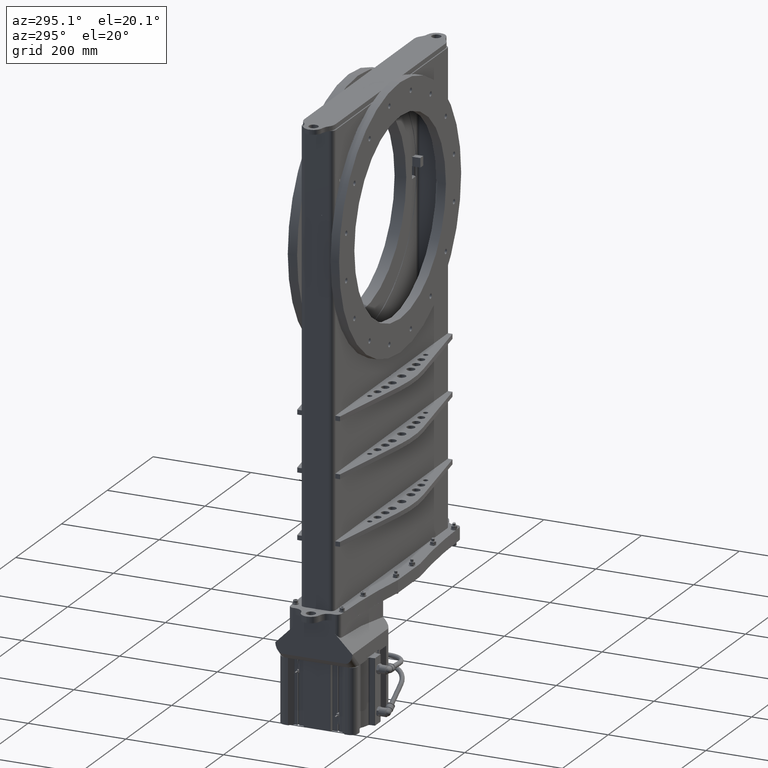
[diagram: clean part render]
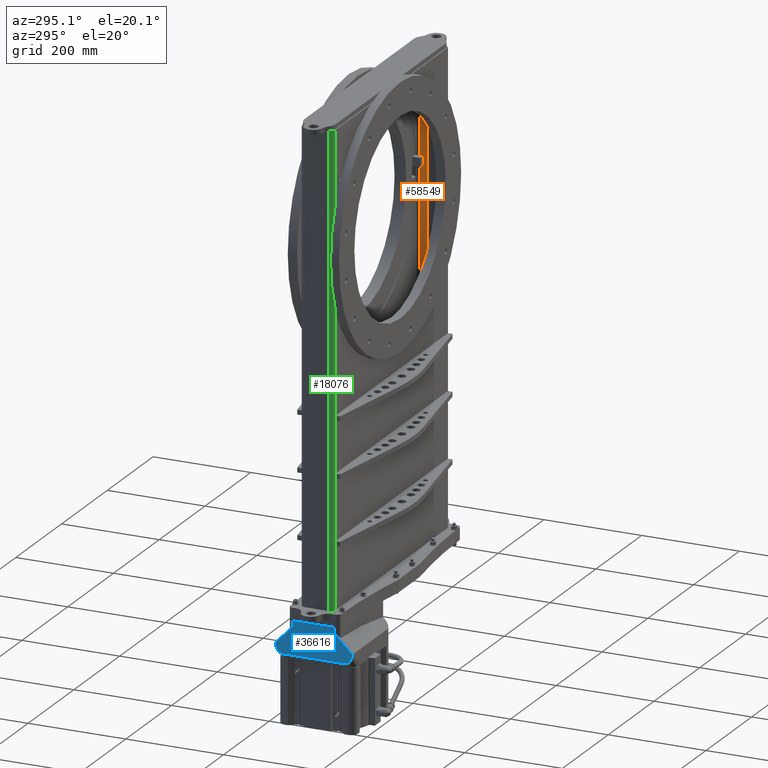
[diagram: same view with three faces highlighted in distinct colors, each labeled with its STEP entity id]
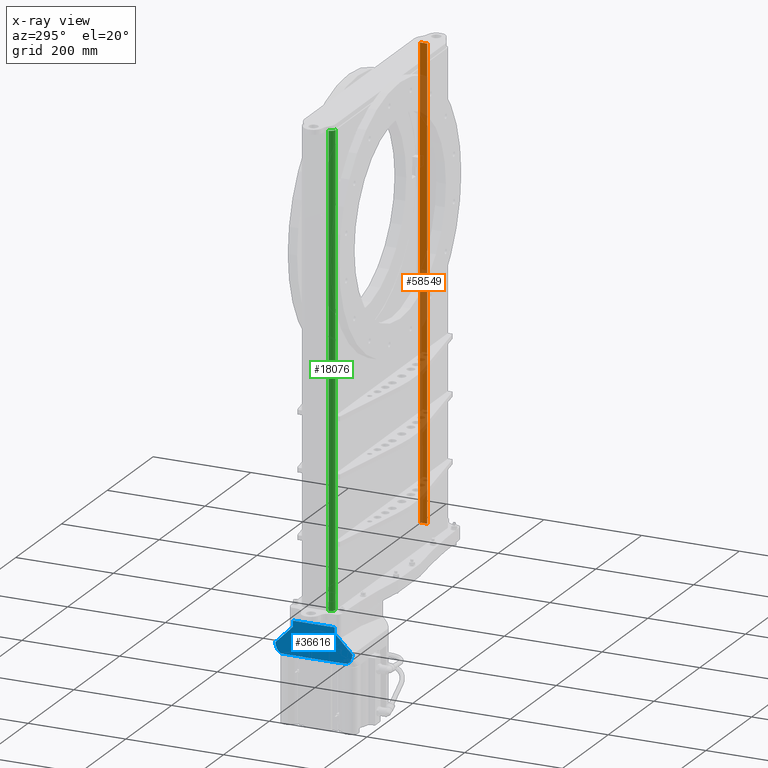
[diagram: x-ray of the same camera — body ghosted, the three highlighted faces saturated]
A machine part, auxiliary view with three faces highlighted in distinct colors.
The next image is the same camera in x-ray (body ghosted, the three faces saturated) — at least one of them is partly hidden behind the body in this view.
Their STEP definitions:

[orange] entity #58549 — the highlighted planar face has unit normal (1, 0, -0).
#2365 = LINE ( 'NONE', #22567, #28967 ) ;
#4075 = LINE ( 'NONE', #28923, #41313 ) ;
#4771 = DIRECTION ( 'NONE',  ( 1.000000000000000000, 0.0000000000000000000, -0.0000000000000000000 ) ) ;
#7005 = ORIENTED_EDGE ( 'NONE', *, *, #47632, .T. ) ;
#7576 = EDGE_LOOP ( 'NONE', ( #56840, #29252, #41639, #7005 ) ) ;
#18891 = AXIS2_PLACEMENT_3D ( 'NONE', #24563, #4771, #43050 ) ;
#20096 = EDGE_CURVE ( 'NONE', #48817, #51984, #2365, .T. ) ;
#22567 = CARTESIAN_POINT ( 'NONE',  ( 9.812500000000000000, -75.31101309069576600, 42.27682794774445800 ) ) ;
#24356 = DIRECTION ( 'NONE',  ( 0.0000000000000000000, -1.000000000000000000, 0.0000000000000000000 ) ) ;
#24563 = CARTESIAN_POINT ( 'NONE',  ( 9.812500000000000000, -74.72601309069577300, 42.27682794774445800 ) ) ;
#27495 = VECTOR ( 'NONE', #24356, 39.37007874015748100 ) ;
#28923 = CARTESIAN_POINT ( 'NONE',  ( 9.812500000000000000, -74.72601309069577300, 42.27682794774445800 ) ) ;
#28967 = VECTOR ( 'NONE', #46959, 39.37007874015748100 ) ;
#29252 = ORIENTED_EDGE ( 'NONE', *, *, #20096, .F. ) ;
#32523 = FACE_OUTER_BOUND ( 'NONE', #7576, .T. ) ;
#35208 = CARTESIAN_POINT ( 'NONE',  ( 9.812500000000000000, -75.31101309069576600, 4.964327947744453500 ) ) ;
#35418 = EDGE_CURVE ( 'NONE', #50173, #48817, #40409, .T. ) ;
#36857 = DIRECTION ( 'NONE',  ( 0.0000000000000000000, -1.000000000000000000, 0.0000000000000000000 ) ) ;
#39329 = DIRECTION ( 'NONE',  ( -0.0000000000000000000, -0.0000000000000000000, -1.000000000000000000 ) ) ;
#40409 = LINE ( 'NONE', #43878, #27495 ) ;
#41313 = VECTOR ( 'NONE', #39329, 39.37007874015748100 ) ;
#41639 = ORIENTED_EDGE ( 'NONE', *, *, #35418, .F. ) ;
#41748 = CARTESIAN_POINT ( 'NONE',  ( 9.812500000000000000, -74.72601309069577300, 4.964327947744453500 ) ) ;
#43050 = DIRECTION ( 'NONE',  ( -0.0000000000000000000, 0.0000000000000000000, -1.000000000000000000 ) ) ;
#43878 = CARTESIAN_POINT ( 'NONE',  ( 9.812500000000000000, -74.72601309069577300, 42.27682794774445800 ) ) ;
#46129 = VECTOR ( 'NONE', #36857, 39.37007874015748100 ) ;
#46959 = DIRECTION ( 'NONE',  ( -0.0000000000000000000, -0.0000000000000000000, -1.000000000000000000 ) ) ;
#47632 = EDGE_CURVE ( 'NONE', #50173, #57176, #4075, .T. ) ;
#48817 = VERTEX_POINT ( 'NONE', #50189 ) ;
#50173 = VERTEX_POINT ( 'NONE', #58271 ) ;
#50189 = CARTESIAN_POINT ( 'NONE',  ( 9.812500000000000000, -75.31101309069576600, 42.27682794774445800 ) ) ;
#51984 = VERTEX_POINT ( 'NONE', #35208 ) ;
#53014 = LINE ( 'NONE', #41748, #46129 ) ;
#54871 = CARTESIAN_POINT ( 'NONE',  ( 9.812500000000000000, -74.72601309069577300, 4.964327947744453500 ) ) ;
#56840 = ORIENTED_EDGE ( 'NONE', *, *, #60464, .T. ) ;
#57176 = VERTEX_POINT ( 'NONE', #54871 ) ;
#58271 = CARTESIAN_POINT ( 'NONE',  ( 9.812500000000000000, -74.72601309069577300, 42.27682794774445800 ) ) ;
#58549 = ADVANCED_FACE ( 'NONE', ( #32523 ), #62427, .F. ) ;
#60464 = EDGE_CURVE ( 'NONE', #57176, #51984, #53014, .T. ) ;
#62427 = PLANE ( 'NONE',  #18891 ) ;

[blue] entity #36616 — the highlighted planar face has unit normal (1, 0, -0).
#253 = DIRECTION ( 'NONE',  ( -0.0000000000000000000, -0.0000000000000000000, 1.000000000000000000 ) ) ;
#354 = EDGE_CURVE ( 'NONE', #49544, #61367, #23950, .T. ) ;
#1101 = CARTESIAN_POINT ( 'NONE',  ( -10.50000000000006600, -77.37479568848456800, 3.464327947744285200 ) ) ;
#1490 = VERTEX_POINT ( 'NONE', #17221 ) ;
#1827 = LINE ( 'NONE', #46156, #16254 ) ;
#2253 = CARTESIAN_POINT ( 'NONE',  ( -10.50000000000006600, -72.57601309069578100, 1.266327947744285500 ) ) ;
#3300 = CARTESIAN_POINT ( 'NONE',  ( -10.50000000000006600, -73.99460946825654200, 3.464327947744285200 ) ) ;
#4161 = EDGE_CURVE ( 'NONE', #61367, #46121, #26817, .T. ) ;
#6173 = ORIENTED_EDGE ( 'NONE', *, *, #354, .T. ) ;
#7648 =( BOUNDED_CURVE ( )  B_SPLINE_CURVE ( 3, ( #42055, #32234, #22531, #56511 ),
 .UNSPECIFIED., .F., .F. ) 
 B_SPLINE_CURVE_WITH_KNOTS ( ( 4, 4 ),
 ( 0.0000000000000000000, 1.512419702955841300 ),
 .UNSPECIFIED. ) 
 CURVE ( )  GEOMETRIC_REPRESENTATION_ITEM ( )  RATIONAL_B_SPLINE_CURVE ( ( 1.000000000000000000, 0.8182946085840843200, 0.8182946085840843200, 1.000000000000000000 ) ) 
 REPRESENTATION_ITEM ( '' )  );
#8020 = LINE ( 'NONE', #25354, #49798 ) ;
#8688 = VECTOR ( 'NONE', #31513, 39.37007874015748100 ) ;
#9379 = VECTOR ( 'NONE', #253, 39.37007874015748100 ) ;
#12266 = ORIENTED_EDGE ( 'NONE', *, *, #29789, .F. ) ;
#12510 = VECTOR ( 'NONE', #34873, 39.37007874015748100 ) ;
#12897 = ORIENTED_EDGE ( 'NONE', *, *, #4161, .T. ) ;
#13104 = ORIENTED_EDGE ( 'NONE', *, *, #55705, .T. ) ;
#13504 = DIRECTION ( 'NONE',  ( 1.000000000000000000, 0.0000000000000000000, -0.0000000000000000000 ) ) ;
#13579 = LINE ( 'NONE', #22535, #50049 ) ;
#13609 = EDGE_CURVE ( 'NONE', #26847, #44411, #7648, .T. ) ;
#14323 = ORIENTED_EDGE ( 'NONE', *, *, #13609, .T. ) ;
#15604 = CARTESIAN_POINT ( 'NONE',  ( -10.50000000000006600, -75.68601309069579500, 3.464327947744285200 ) ) ;
#15880 = ORIENTED_EDGE ( 'NONE', *, *, #17824, .F. ) ;
#16254 = VECTOR ( 'NONE', #55967, 39.37007874015748100 ) ;
#17221 = CARTESIAN_POINT ( 'NONE',  ( -10.50000000000006600, -73.99460946825654200, 3.964327947744285200 ) ) ;
#17714 = CARTESIAN_POINT ( 'NONE',  ( -10.50000000000006600, -72.57601309069578100, 3.964327947744285200 ) ) ;
#17720 = CARTESIAN_POINT ( 'NONE',  ( -10.50000000000006600, -73.99460946825654200, 3.464327947744285200 ) ) ;
#17824 = EDGE_CURVE ( 'NONE', #30631, #1490, #32179, .T. ) ;
#18737 = VERTEX_POINT ( 'NONE', #23567 ) ;
#18793 = ORIENTED_EDGE ( 'NONE', *, *, #48908, .F. ) ;
#20882 = CARTESIAN_POINT ( 'NONE',  ( -10.50000000000006600, -72.59660438423117100, 1.591810583778480400 ) ) ;
#21527 = ORIENTED_EDGE ( 'NONE', *, *, #56553, .T. ) ;
#21629 = LINE ( 'NONE', #2253, #8688 ) ;
#22167 = DIRECTION ( 'NONE',  ( 0.0000000000000000000, -1.000000000000000000, 0.0000000000000000000 ) ) ;
#22531 = CARTESIAN_POINT ( 'NONE',  ( -10.50000000000006600, -78.77542179716041900, 1.591810583778480800 ) ) ;
#22535 = CARTESIAN_POINT ( 'NONE',  ( -10.50000000000006600, -75.68601309069579500, 3.464327947744285200 ) ) ;
#23567 = CARTESIAN_POINT ( 'NONE',  ( -10.50000000000006600, -77.39601309069576000, 3.464327947744285200 ) ) ;
#23950 = LINE ( 'NONE', #59540, #12510 ) ;
#25161 = CARTESIAN_POINT ( 'NONE',  ( -10.50000000000006600, -72.84059879853015200, 1.266327947744285700 ) ) ;
#25354 = CARTESIAN_POINT ( 'NONE',  ( -10.50000000000006600, -77.39601309069576000, 3.464327947744285200 ) ) ;
#25558 = CARTESIAN_POINT ( 'NONE',  ( -10.50000000000006600, -72.57703514945934800, 2.065350006507838300 ) ) ;
#26817 =( BOUNDED_CURVE ( )  B_SPLINE_CURVE ( 3, ( #25558, #20882, #25161, #44447 ),
 .UNSPECIFIED., .F., .F. ) 
 B_SPLINE_CURVE_WITH_KNOTS ( ( 4, 4 ),
 ( 1.629172950633953600, 3.141592653589793100 ),
 .UNSPECIFIED. ) 
 CURVE ( )  GEOMETRIC_REPRESENTATION_ITEM ( )  RATIONAL_B_SPLINE_CURVE ( ( 1.000000000000000000, 0.8182946085840847600, 0.8182946085840847600, 1.000000000000000000 ) ) 
 REPRESENTATION_ITEM ( '' )  );
#26847 = VERTEX_POINT ( 'NONE', #28257 ) ;
#27593 = LINE ( 'NONE', #44006, #9379 ) ;
#27934 = PLANE ( 'NONE',  #29602 ) ;
#28257 = CARTESIAN_POINT ( 'NONE',  ( -10.50000000000006600, -78.19601309069578600, 1.266327947744285500 ) ) ;
#28379 = CARTESIAN_POINT ( 'NONE',  ( -10.50000000000006600, -73.97601309069581500, 3.464327947744285200 ) ) ;
#29597 = CARTESIAN_POINT ( 'NONE',  ( -10.50000000000006600, -77.37479568848456800, 3.964327947744285200 ) ) ;
#29602 = AXIS2_PLACEMENT_3D ( 'NONE', #17714, #13504, #61955 ) ;
#29714 = FACE_OUTER_BOUND ( 'NONE', #50009, .T. ) ;
#29789 = EDGE_CURVE ( 'NONE', #56678, #18737, #13579, .T. ) ;
#30631 = VERTEX_POINT ( 'NONE', #3300 ) ;
#30669 = ORIENTED_EDGE ( 'NONE', *, *, #40307, .T. ) ;
#31513 = DIRECTION ( 'NONE',  ( 0.0000000000000000000, -1.000000000000000000, 0.0000000000000000000 ) ) ;
#32179 = LINE ( 'NONE', #17720, #56554 ) ;
#32234 = CARTESIAN_POINT ( 'NONE',  ( -10.50000000000006600, -78.53142738286142300, 1.266327947744285700 ) ) ;
#34873 = DIRECTION ( 'NONE',  ( 0.0000000000000000000, 0.7071067811865511300, -0.7071067811865439100 ) ) ;
#34898 = DIRECTION ( 'NONE',  ( 0.0000000000000000000, 0.7071067811865511300, 0.7071067811865439100 ) ) ;
#36616 = ADVANCED_FACE ( 'NONE', ( #29714 ), #27934, .F. ) ;
#39372 = VERTEX_POINT ( 'NONE', #29597 ) ;
#40307 = EDGE_CURVE ( 'NONE', #44411, #18737, #8020, .T. ) ;
#40994 = CARTESIAN_POINT ( 'NONE',  ( -10.50000000000006600, -78.79499103193221300, 2.065350006507839200 ) ) ;
#42055 = CARTESIAN_POINT ( 'NONE',  ( -10.50000000000006600, -78.19601309069578600, 1.266327947744285500 ) ) ;
#44006 = CARTESIAN_POINT ( 'NONE',  ( -10.50000000000006600, -77.37479568848456800, 3.464327947744285200 ) ) ;
#44411 = VERTEX_POINT ( 'NONE', #40994 ) ;
#44447 = CARTESIAN_POINT ( 'NONE',  ( -10.50000000000006600, -73.17601309069579000, 1.266327947744285500 ) ) ;
#46121 = VERTEX_POINT ( 'NONE', #47092 ) ;
#46156 = CARTESIAN_POINT ( 'NONE',  ( -10.50000000000006600, -72.57601309069578100, 3.964327947744285200 ) ) ;
#47092 = CARTESIAN_POINT ( 'NONE',  ( -10.50000000000006600, -73.17601309069579000, 1.266327947744285500 ) ) ;
#48908 = EDGE_CURVE ( 'NONE', #49544, #30631, #50925, .T. ) ;
#49544 = VERTEX_POINT ( 'NONE', #28379 ) ;
#49798 = VECTOR ( 'NONE', #34898, 39.37007874015748100 ) ;
#50009 = EDGE_LOOP ( 'NONE', ( #13104, #14323, #30669, #12266, #21527, #58040, #15880, #18793, #6173, #12897 ) ) ;
#50049 = VECTOR ( 'NONE', #57378, 39.37007874015748100 ) ;
#50485 = CARTESIAN_POINT ( 'NONE',  ( -10.50000000000006600, -72.57703514945934800, 2.065350006507838300 ) ) ;
#50925 = LINE ( 'NONE', #15604, #61658 ) ;
#55705 = EDGE_CURVE ( 'NONE', #46121, #26847, #21629, .T. ) ;
#55967 = DIRECTION ( 'NONE',  ( 0.0000000000000000000, -1.000000000000000000, 0.0000000000000000000 ) ) ;
#56511 = CARTESIAN_POINT ( 'NONE',  ( -10.50000000000006600, -78.79499103193221300, 2.065350006507839200 ) ) ;
#56553 = EDGE_CURVE ( 'NONE', #56678, #39372, #27593, .T. ) ;
#56554 = VECTOR ( 'NONE', #60897, 39.37007874015748100 ) ;
#56678 = VERTEX_POINT ( 'NONE', #1101 ) ;
#57378 = DIRECTION ( 'NONE',  ( 0.0000000000000000000, -1.000000000000000000, 0.0000000000000000000 ) ) ;
#58040 = ORIENTED_EDGE ( 'NONE', *, *, #62685, .F. ) ;
#59540 = CARTESIAN_POINT ( 'NONE',  ( -10.50000000000006600, -73.97601309069581500, 3.464327947744285200 ) ) ;
#60897 = DIRECTION ( 'NONE',  ( -0.0000000000000000000, -0.0000000000000000000, 1.000000000000000000 ) ) ;
#61367 = VERTEX_POINT ( 'NONE', #50485 ) ;
#61658 = VECTOR ( 'NONE', #22167, 39.37007874015748100 ) ;
#61955 = DIRECTION ( 'NONE',  ( -0.0000000000000000000, 0.0000000000000000000, -1.000000000000000000 ) ) ;
#62685 = EDGE_CURVE ( 'NONE', #1490, #39372, #1827, .T. ) ;

[green] entity #18076 — the highlighted cylindrical surface (edge-blend (fillet) strip) has radius 9.8425 mm, axis along (0, 0, -1).
#193 = AXIS2_PLACEMENT_3D ( 'NONE', #21076, #25542, #41447 ) ;
#636 = B_SPLINE_CURVE_WITH_KNOTS ( 'NONE', 3,
 ( #29669, #43482, #39244, #48177 ),
 .UNSPECIFIED., .F., .F.,
 ( 4, 4 ),
 ( 0.02158245950985362600, 0.02237412117787618300 ),
 .UNSPECIFIED. ) ;
#3622 = AXIS2_PLACEMENT_3D ( 'NONE', #33536, #48230, #62941 ) ;
#4833 = LINE ( 'NONE', #41589, #9439 ) ;
#4955 = ORIENTED_EDGE ( 'NONE', *, *, #32469, .T. ) ;
#5073 = CARTESIAN_POINT ( 'NONE',  ( -9.616679057678460700, -77.03351309069572000, 36.91959344863349900 ) ) ;
#5702 = VERTEX_POINT ( 'NONE', #28982 ) ;
#6755 = VERTEX_POINT ( 'NONE', #53396 ) ;
#6971 = LINE ( 'NONE', #10777, #22202 ) ;
#7951 = CARTESIAN_POINT ( 'NONE',  ( -9.624999999999962700, -77.03331142531646900, 42.27682794774445800 ) ) ;
#8157 = CARTESIAN_POINT ( 'NONE',  ( -9.612499999999958100, -77.03351309069572000, 36.62673549111153200 ) ) ;
#8311 = VERTEX_POINT ( 'NONE', #43081 ) ;
#8553 = CARTESIAN_POINT ( 'NONE',  ( -9.999999999999959100, -76.64601309069573200, 42.27682794774445800 ) ) ;
#9439 = VECTOR ( 'NONE', #40953, 39.37007874015748100 ) ;
#9704 = VECTOR ( 'NONE', #43083, 39.37007874015748100 ) ;
#10271 = CARTESIAN_POINT ( 'NONE',  ( -9.620850734815604700, -77.03344534227444700, 27.89295313054458300 ) ) ;
#10777 = CARTESIAN_POINT ( 'NONE',  ( -9.612499999999961600, -77.03351309069572000, 42.27682794774445800 ) ) ;
#11967 = LINE ( 'NONE', #7951, #44616 ) ;
#12869 = ORIENTED_EDGE ( 'NONE', *, *, #39643, .F. ) ;
#14928 = CARTESIAN_POINT ( 'NONE',  ( -9.624999999999960900, -77.03331142531646900, 27.90182794774445400 ) ) ;
#15554 = CARTESIAN_POINT ( 'NONE',  ( -9.616684137887366600, -77.03351309069572000, 27.88407323488124200 ) ) ;
#16887 = DIRECTION ( 'NONE',  ( 0.0000000000000000000, 0.0000000000000000000, -1.000000000000000000 ) ) ;
#16969 = DIRECTION ( 'NONE',  ( 0.0000000000000000000, 0.0000000000000000000, 1.000000000000000000 ) ) ;
#17101 = ORIENTED_EDGE ( 'NONE', *, *, #25497, .F. ) ;
#17168 = LINE ( 'NONE', #47772, #55968 ) ;
#17327 = CARTESIAN_POINT ( 'NONE',  ( -9.624999999999960900, -77.03331142531646900, 27.90182794774445400 ) ) ;
#18003 = ORIENTED_EDGE ( 'NONE', *, *, #21870, .F. ) ;
#18076 = ADVANCED_FACE ( 'NONE', ( #31449 ), #58845, .T. ) ;
#18668 = DIRECTION ( 'NONE',  ( 0.0000000000000000000, 0.0000000000000000000, -1.000000000000000000 ) ) ;
#18834 = LINE ( 'NONE', #42451, #9704 ) ;
#20135 = DIRECTION ( 'NONE',  ( 0.0000000000000000000, 0.0000000000000000000, -1.000000000000000000 ) ) ;
#20455 = EDGE_CURVE ( 'NONE', #21914, #39997, #33712, .T. ) ;
#21076 = CARTESIAN_POINT ( 'NONE',  ( -9.612499999999961600, -76.64601309069573200, 42.27682794774445800 ) ) ;
#21870 = EDGE_CURVE ( 'NONE', #55498, #27281, #636, .T. ) ;
#21914 = VERTEX_POINT ( 'NONE', #23063 ) ;
#22202 = VECTOR ( 'NONE', #20135, 39.37007874015748100 ) ;
#23063 = CARTESIAN_POINT ( 'NONE',  ( -9.624999999999962700, -77.03331142531646900, 36.90182794774445100 ) ) ;
#23327 = CARTESIAN_POINT ( 'NONE',  ( -9.624999999999962700, -77.03331142531646900, 28.20547536484582500 ) ) ;
#24347 = CARTESIAN_POINT ( 'NONE',  ( -9.612499999999961600, -77.03351309069572000, 42.27682794774445800 ) ) ;
#24785 = LINE ( 'NONE', #8553, #54392 ) ;
#25118 = CARTESIAN_POINT ( 'NONE',  ( -9.612499999999958100, -77.03351309069572000, 27.87518805153004600 ) ) ;
#25497 = EDGE_CURVE ( 'NONE', #5702, #30910, #56589, .T. ) ;
#25542 = DIRECTION ( 'NONE',  ( 0.0000000000000000000, 0.0000000000000000000, -1.000000000000000000 ) ) ;
#27281 = VERTEX_POINT ( 'NONE', #8157 ) ;
#28084 = ORIENTED_EDGE ( 'NONE', *, *, #38658, .F. ) ;
#28877 = ORIENTED_EDGE ( 'NONE', *, *, #38249, .T. ) ;
#28982 = CARTESIAN_POINT ( 'NONE',  ( -9.999999999999959100, -76.64601309069573200, 42.27682794774445800 ) ) ;
#29669 = CARTESIAN_POINT ( 'NONE',  ( -9.624999999999962700, -77.03331142531646900, 36.59818053064308400 ) ) ;
#30340 = CARTESIAN_POINT ( 'NONE',  ( -9.612499999999961600, -77.03351309069572000, 36.92846784395887000 ) ) ;
#30910 = VERTEX_POINT ( 'NONE', #24347 ) ;
#31449 = FACE_OUTER_BOUND ( 'NONE', #42961, .T. ) ;
#31797 = CARTESIAN_POINT ( 'NONE',  ( -9.612499999999961600, -77.03351309069572000, 4.964327947744453500 ) ) ;
#32170 = EDGE_CURVE ( 'NONE', #5702, #46338, #24785, .T. ) ;
#32469 = EDGE_CURVE ( 'NONE', #54397, #48280, #51993, .T. ) ;
#33250 = CARTESIAN_POINT ( 'NONE',  ( -9.616680877964269000, -77.03351309069572000, 28.18643272837959700 ) ) ;
#33536 = CARTESIAN_POINT ( 'NONE',  ( -9.612499999999961600, -76.64601309069573200, 4.964327947744453500 ) ) ;
#33712 = B_SPLINE_CURVE_WITH_KNOTS ( 'NONE', 3,
 ( #49083, #62750, #5073, #30340 ),
 .UNSPECIFIED., .F., .F.,
 ( 4, 4 ),
 ( 0.0000000000000000000, 0.0007474571979506820900 ),
 .UNSPECIFIED. ) ;
#34957 = EDGE_CURVE ( 'NONE', #27281, #8311, #6971, .T. ) ;
#35302 = EDGE_CURVE ( 'NONE', #8311, #6755, #62629, .T. ) ;
#37875 = CIRCLE ( 'NONE', #3622, 0.3875000000000001800 ) ;
#38167 = AXIS2_PLACEMENT_3D ( 'NONE', #45847, #16969, #40781 ) ;
#38249 = EDGE_CURVE ( 'NONE', #46338, #55299, #37875, .T. ) ;
#38616 = CARTESIAN_POINT ( 'NONE',  ( -9.999999999999959100, -76.64601309069573200, 4.964327947744453500 ) ) ;
#38658 = EDGE_CURVE ( 'NONE', #30910, #39997, #18834, .T. ) ;
#39244 = CARTESIAN_POINT ( 'NONE',  ( -9.616680754500144700, -77.03351309069572000, 36.61722344801460600 ) ) ;
#39643 = EDGE_CURVE ( 'NONE', #21914, #55498, #17168, .T. ) ;
#39997 = VERTEX_POINT ( 'NONE', #50658 ) ;
#40781 = DIRECTION ( 'NONE',  ( 1.000000000000000000, 0.0000000000000000000, 0.0000000000000000000 ) ) ;
#40953 = DIRECTION ( 'NONE',  ( 0.0000000000000000000, 0.0000000000000000000, -1.000000000000000000 ) ) ;
#41447 = DIRECTION ( 'NONE',  ( 1.000000000000000000, 0.0000000000000000000, 0.0000000000000000000 ) ) ;
#41497 = ORIENTED_EDGE ( 'NONE', *, *, #32170, .T. ) ;
#41589 = CARTESIAN_POINT ( 'NONE',  ( -9.612499999999961600, -77.03351309069572000, 42.27682794774445800 ) ) ;
#42451 = CARTESIAN_POINT ( 'NONE',  ( -9.612499999999961600, -77.03351309069572000, 42.27682794774445800 ) ) ;
#42885 = ORIENTED_EDGE ( 'NONE', *, *, #46073, .F. ) ;
#42961 = EDGE_LOOP ( 'NONE', ( #18003, #12869, #44087, #28084, #17101, #41497, #28877, #42885, #4955, #55481, #43879, #53597 ) ) ;
#43081 = CARTESIAN_POINT ( 'NONE',  ( -9.612499999999958100, -77.03351309069572000, 28.17692040437738000 ) ) ;
#43083 = DIRECTION ( 'NONE',  ( 0.0000000000000000000, 0.0000000000000000000, -1.000000000000000000 ) ) ;
#43482 = CARTESIAN_POINT ( 'NONE',  ( -9.620847421662519500, -77.03344544920599900, 36.60770512747051700 ) ) ;
#43879 = ORIENTED_EDGE ( 'NONE', *, *, #35302, .F. ) ;
#44087 = ORIENTED_EDGE ( 'NONE', *, *, #20455, .T. ) ;
#44616 = VECTOR ( 'NONE', #16887, 39.37007874015748100 ) ;
#45847 = CARTESIAN_POINT ( 'NONE',  ( -9.612499999999961600, -76.64601309069573200, 42.27682794774445800 ) ) ;
#45906 = CARTESIAN_POINT ( 'NONE',  ( -9.612499999999958100, -77.03351309069572000, 27.87518805153004600 ) ) ;
#46073 = EDGE_CURVE ( 'NONE', #54397, #55299, #4833, .T. ) ;
#46338 = VERTEX_POINT ( 'NONE', #38616 ) ;
#47066 = CARTESIAN_POINT ( 'NONE',  ( -9.620847724820425400, -77.03344543942162700, 28.19595146335911900 ) ) ;
#47772 = CARTESIAN_POINT ( 'NONE',  ( -9.624999999999962700, -77.03331142531646900, 42.27682794774445800 ) ) ;
#48177 = CARTESIAN_POINT ( 'NONE',  ( -9.612499999999958100, -77.03351309069572000, 36.62673549111153200 ) ) ;
#48230 = DIRECTION ( 'NONE',  ( 0.0000000000000000000, 0.0000000000000000000, 1.000000000000000000 ) ) ;
#48280 = VERTEX_POINT ( 'NONE', #17327 ) ;
#49083 = CARTESIAN_POINT ( 'NONE',  ( -9.624999999999962700, -77.03331142531646900, 36.90182794774445100 ) ) ;
#50658 = CARTESIAN_POINT ( 'NONE',  ( -9.612499999999961600, -77.03351309069572000, 36.92846784395887000 ) ) ;
#51993 = B_SPLINE_CURVE_WITH_KNOTS ( 'NONE', 3,
 ( #25118, #15554, #10271, #14928 ),
 .UNSPECIFIED., .F., .F.,
 ( 4, 4 ),
 ( 1.241267076623636600E-016, 0.0007368642978220979800 ),
 .UNSPECIFIED. ) ;
#53396 = CARTESIAN_POINT ( 'NONE',  ( -9.624999999999962700, -77.03331142531646900, 28.20547536484582500 ) ) ;
#53597 = ORIENTED_EDGE ( 'NONE', *, *, #34957, .F. ) ;
#54392 = VECTOR ( 'NONE', #57454, 39.37007874015748100 ) ;
#54397 = VERTEX_POINT ( 'NONE', #45906 ) ;
#55299 = VERTEX_POINT ( 'NONE', #31797 ) ;
#55481 = ORIENTED_EDGE ( 'NONE', *, *, #60502, .F. ) ;
#55498 = VERTEX_POINT ( 'NONE', #62698 ) ;
#55968 = VECTOR ( 'NONE', #18668, 39.37007874015748100 ) ;
#56589 = CIRCLE ( 'NONE', #38167, 0.3875000000000001800 ) ;
#57454 = DIRECTION ( 'NONE',  ( 0.0000000000000000000, 0.0000000000000000000, -1.000000000000000000 ) ) ;
#58845 = CYLINDRICAL_SURFACE ( 'NONE', #193, 0.3875000000000001800 ) ;
#60502 = EDGE_CURVE ( 'NONE', #6755, #48280, #11967, .T. ) ;
#62431 = CARTESIAN_POINT ( 'NONE',  ( -9.612499999999958100, -77.03351309069572000, 28.17692040437738000 ) ) ;
#62629 = B_SPLINE_CURVE_WITH_KNOTS ( 'NONE', 3,
 ( #62431, #33250, #47066, #23327 ),
 .UNSPECIFIED., .F., .F.,
 ( 4, 4 ),
 ( 1.241267076623636600E-016, 0.0007917618136978299100 ),
 .UNSPECIFIED. ) ;
#62698 = CARTESIAN_POINT ( 'NONE',  ( -9.624999999999962700, -77.03331142531646900, 36.59818053064308400 ) ) ;
#62750 = CARTESIAN_POINT ( 'NONE',  ( -9.620845924727556000, -77.03344549751938100, 36.91071305318820400 ) ) ;
#62941 = DIRECTION ( 'NONE',  ( 1.000000000000000000, 0.0000000000000000000, 0.0000000000000000000 ) ) ;